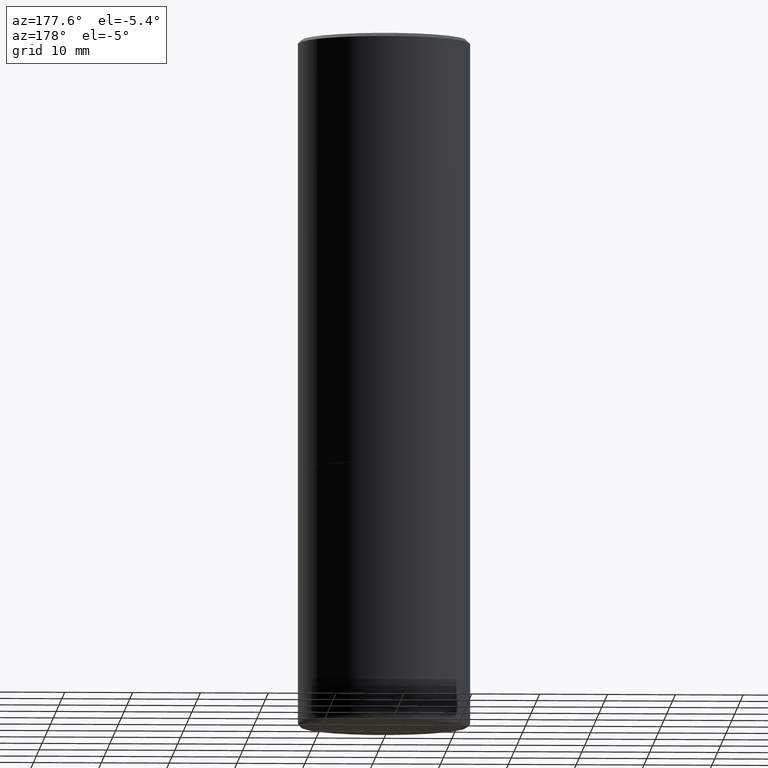
[diagram: clean part render]
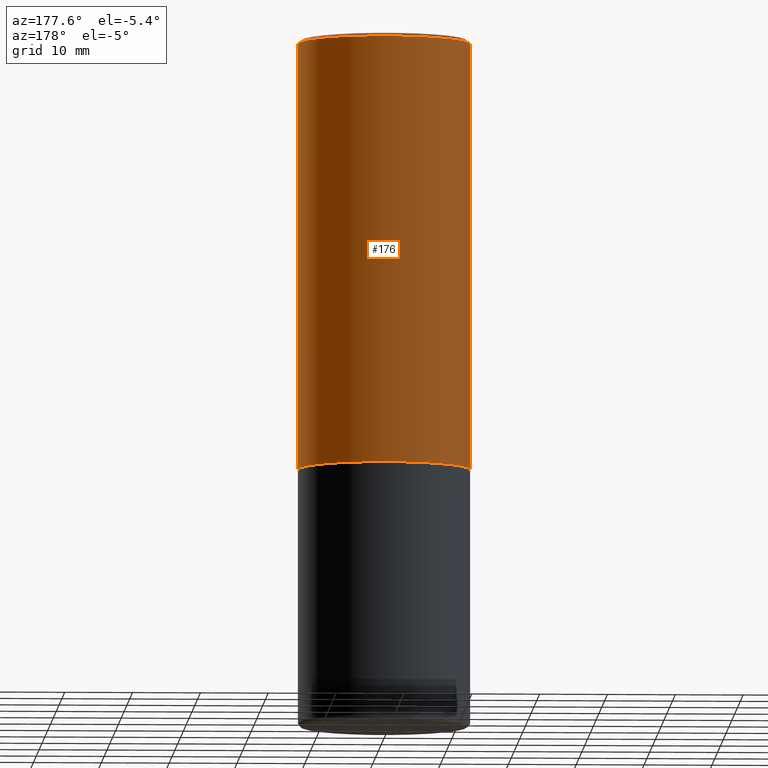
[diagram: same view with one face highlighted and labeled with its STEP entity id]
A machine part, auxiliary view. The second image highlights one B-rep face of the part: STEP entity #176.
In plain terms, the highlighted cylindrical surface (partial cylindrical patch) has radius 12.7 mm, axis along (-0, 0, 1).
Its self-contained STEP definition (entity closure, byte-faithful):
#3 = VERTEX_POINT ( 'NONE', #388 ) ;
#12 = CARTESIAN_POINT ( 'NONE',  ( 4.890937612370299433E-31, -6.982962677686328587E-17, -0.02000000000000010797 ) ) ;
#27 = LINE ( 'NONE', #127, #76 ) ;
#38 = EDGE_CURVE ( 'NONE', #396, #319, #27, .T. ) ;
#54 = ORIENTED_EDGE ( 'NONE', *, *, #336, .F. ) ;
#61 = FACE_OUTER_BOUND ( 'NONE', #83, .T. ) ;
#76 = VECTOR ( 'NONE', #99, 39.37007874015748143 ) ;
#83 = EDGE_LOOP ( 'NONE', ( #142, #379, #54, #107 ) ) ;
#99 = DIRECTION ( 'NONE',  ( -2.445468806185136877E-29, 3.491481338843145188E-15, 1.000000000000000000 ) ) ;
#102 = CARTESIAN_POINT ( 'NONE',  ( -0.5000000000000001110, 3.421651712066270452E-15, -0.02000000000000010797 ) ) ;
#105 = DIRECTION ( 'NONE',  ( 1.000000000000000000, -6.982962677686269866E-15, 0.000000000000000000 ) ) ;
#107 = ORIENTED_EDGE ( 'NONE', *, *, #38, .F. ) ;
#127 = CARTESIAN_POINT ( 'NONE',  ( 0.5000000000000001110, -3.491481338843134539E-15, 2.438088387897968457E-29 ) ) ;
#128 = CIRCLE ( 'NONE', #213, 0.5000000000000001110 ) ;
#136 = DIRECTION ( 'NONE',  ( -2.445468806185136597E-29, 3.491481338843145583E-15, 1.000000000000000000 ) ) ;
#138 = DIRECTION ( 'NONE',  ( -2.445468806185136877E-29, 3.491481338843145188E-15, 1.000000000000000000 ) ) ;
#142 = ORIENTED_EDGE ( 'NONE', *, *, #324, .T. ) ;
#162 = DIRECTION ( 'NONE',  ( -2.445468806185136597E-29, 3.491481338843145583E-15, 1.000000000000000000 ) ) ;
#174 = CARTESIAN_POINT ( 'NONE',  ( -0.5000000000000001110, 3.552713678800501718E-15, -2.459467545127453732E-29 ) ) ;
#176 = ADVANCED_FACE ( 'NONE', ( #61 ), #189, .T. ) ;
#188 = VECTOR ( 'NONE', #138, 39.37007874015748143 ) ;
#189 = CYLINDRICAL_SURFACE ( 'NONE', #228, 0.5000000000000001110 ) ;
#205 = LINE ( 'NONE', #174, #188 ) ;
#213 = AXIS2_PLACEMENT_3D ( 'NONE', #12, #136, #368 ) ;
#227 = CARTESIAN_POINT ( 'NONE',  ( 6.111226546656657010E-29, -8.725211865769021935E-15, -2.499000000000000110 ) ) ;
#228 = AXIS2_PLACEMENT_3D ( 'NONE', #292, #162, #390 ) ;
#229 = CIRCLE ( 'NONE', #399, 0.5000000000000002220 ) ;
#268 = DIRECTION ( 'NONE',  ( -2.445468806185136597E-29, 3.491481338843145583E-15, 1.000000000000000000 ) ) ;
#269 = VERTEX_POINT ( 'NONE', #102 ) ;
#280 = CARTESIAN_POINT ( 'NONE',  ( 0.5000000000000002220, -1.221669320461215845E-14, -2.499000000000000110 ) ) ;
#292 = CARTESIAN_POINT ( 'NONE',  ( 0.000000000000000000, 0.000000000000000000, 0.000000000000000000 ) ) ;
#307 = CARTESIAN_POINT ( 'NONE',  ( 0.5000000000000001110, -3.500078625662629868E-15, -0.02000000000000010797 ) ) ;
#319 = VERTEX_POINT ( 'NONE', #307 ) ;
#324 = EDGE_CURVE ( 'NONE', #396, #3, #229, .T. ) ;
#336 = EDGE_CURVE ( 'NONE', #319, #269, #128, .T. ) ;
#368 = DIRECTION ( 'NONE',  ( 1.000000000000000000, -6.982962677686265922E-15, 0.000000000000000000 ) ) ;
#376 = EDGE_CURVE ( 'NONE', #3, #269, #205, .T. ) ;
#379 = ORIENTED_EDGE ( 'NONE', *, *, #376, .T. ) ;
#388 = CARTESIAN_POINT ( 'NONE',  ( -0.5000000000000002220, -8.448070674724393209E-16, -2.499000000000000110 ) ) ;
#390 = DIRECTION ( 'NONE',  ( 1.000000000000000000, -6.982962677686267499E-15, 4.876176775795935793E-29 ) ) ;
#396 = VERTEX_POINT ( 'NONE', #280 ) ;
#399 = AXIS2_PLACEMENT_3D ( 'NONE', #227, #268, #105 ) ;